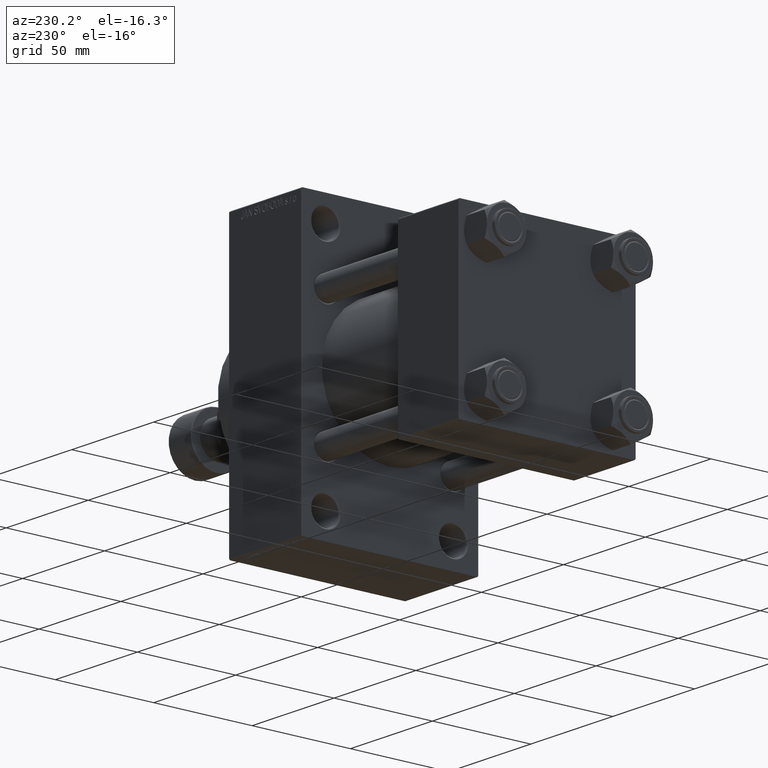
[diagram: clean part render]
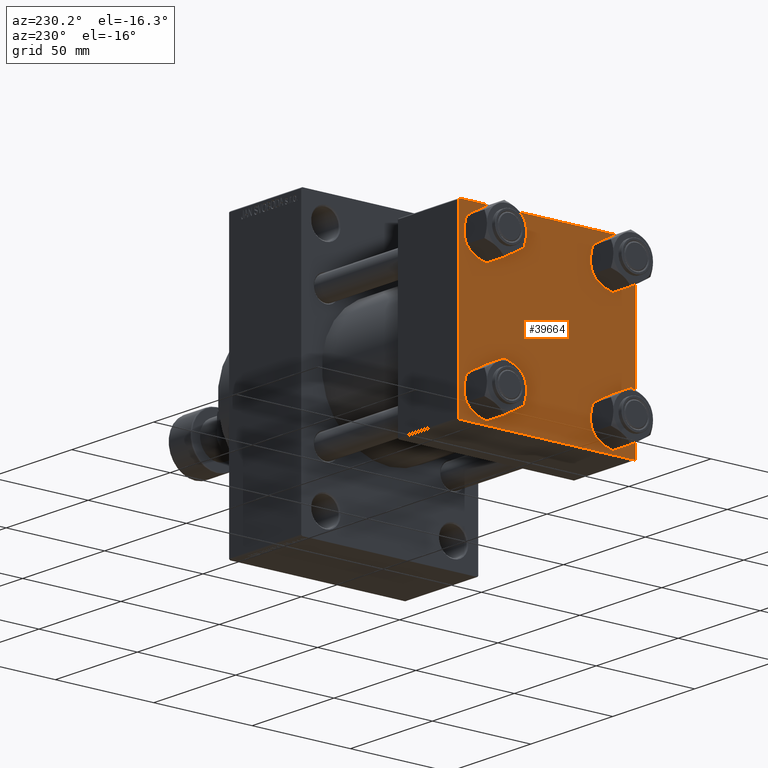
[diagram: same view with one face highlighted and labeled with its STEP entity id]
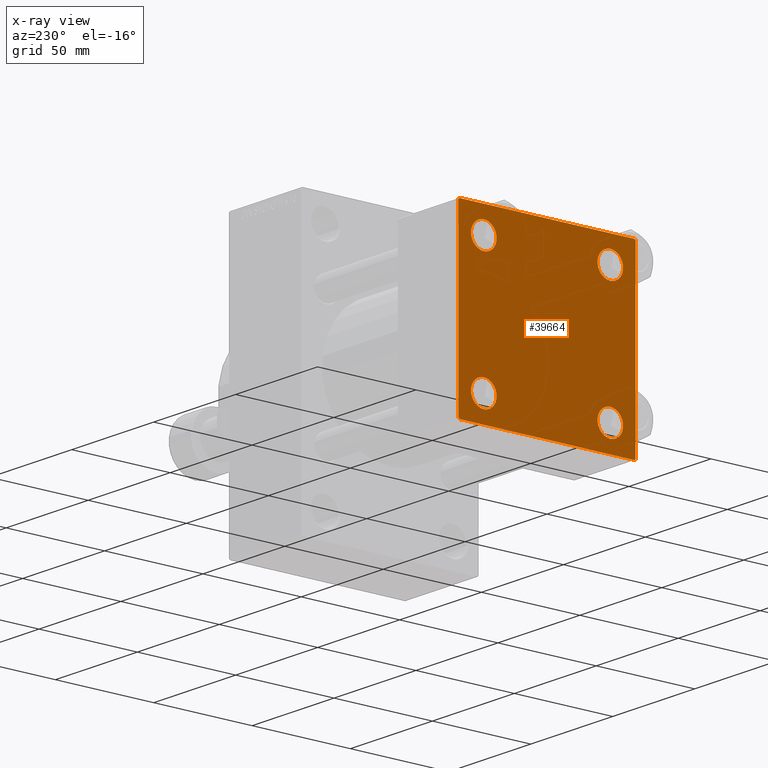
[diagram: x-ray of the same camera — body ghosted, the highlighted face saturated]
A machine part, auxiliary view. The second image highlights one B-rep face of the part: STEP entity #39664.
The next image is the same camera in x-ray: the body ghosted, the highlighted face saturated — about 0% of this face is hidden behind the body in this view.
In plain terms, the highlighted planar face has unit normal (-1, 0, 0).
Its self-contained STEP definition (entity closure, byte-faithful):
#556 = CARTESIAN_POINT ( 'NONE',  ( 0.000000000000000000, 32.14999999999999147, -25.64999999999997726 ) ) ;
#2301 = CARTESIAN_POINT ( 'NONE',  ( 0.000000000000000000, 45.00000000000000000, -44.49999999999996447 ) ) ;
#2861 = DIRECTION ( 'NONE',  ( 1.000000000000000000, -0.000000000000000000, 0.000000000000000000 ) ) ;
#3167 = LINE ( 'NONE', #6546, #45168 ) ;
#3285 = ORIENTED_EDGE ( 'NONE', *, *, #8979, .T. ) ;
#4117 = DIRECTION ( 'NONE',  ( 0.000000000000000000, 0.000000000000000000, 1.000000000000000000 ) ) ;
#4417 = CARTESIAN_POINT ( 'NONE',  ( 0.000000000000000000, 32.14999999999999147, -38.65000000000001990 ) ) ;
#5103 = ORIENTED_EDGE ( 'NONE', *, *, #8265, .F. ) ;
#5604 = VERTEX_POINT ( 'NONE', #42263 ) ;
#6546 = CARTESIAN_POINT ( 'NONE',  ( 0.000000000000000000, 45.00000000000000000, 45.00000000000000711 ) ) ;
#6650 = CIRCLE ( 'NONE', #10510, 6.500000000000019540 ) ;
#6814 = VECTOR ( 'NONE', #34221, 1000.000000000000114 ) ;
#7291 = FACE_BOUND ( 'NONE', #9203, .T. ) ;
#7845 = EDGE_LOOP ( 'NONE', ( #25215, #27050 ) ) ;
#8121 = CARTESIAN_POINT ( 'NONE',  ( 0.000000000000000000, -32.14999999999997726, 32.15000000000000568 ) ) ;
#8265 = EDGE_CURVE ( 'NONE', #26564, #16706, #3167, .T. ) ;
#8297 = CIRCLE ( 'NONE', #11380, 6.500000000000019540 ) ;
#8595 = AXIS2_PLACEMENT_3D ( 'NONE', #8121, #22583, #23289 ) ;
#8910 = CARTESIAN_POINT ( 'NONE',  ( 0.000000000000000000, -32.14999999999997726, 32.15000000000000568 ) ) ;
#8979 = EDGE_CURVE ( 'NONE', #37040, #25617, #6650, .T. ) ;
#9021 = CARTESIAN_POINT ( 'NONE',  ( 0.000000000000000000, 32.14999999999999147, 38.65000000000001990 ) ) ;
#9203 = EDGE_LOOP ( 'NONE', ( #39066, #38089 ) ) ;
#9219 = CARTESIAN_POINT ( 'NONE',  ( 0.000000000000000000, -45.00000000000000000, -44.49999999999997158 ) ) ;
#9556 = EDGE_CURVE ( 'NONE', #12150, #35496, #12733, .T. ) ;
#10000 = CIRCLE ( 'NONE', #33888, 6.500000000000019540 ) ;
#10510 = AXIS2_PLACEMENT_3D ( 'NONE', #33841, #33609, #25454 ) ;
#10997 = ORIENTED_EDGE ( 'NONE', *, *, #14276, .T. ) ;
#11012 = AXIS2_PLACEMENT_3D ( 'NONE', #35344, #36954, #40806 ) ;
#11380 = AXIS2_PLACEMENT_3D ( 'NONE', #33308, #41002, #4117 ) ;
#11820 = LINE ( 'NONE', #45319, #29841 ) ;
#12019 = DIRECTION ( 'NONE',  ( 0.000000000000000000, 0.000000000000000000, -1.000000000000000000 ) ) ;
#12150 = VERTEX_POINT ( 'NONE', #12479 ) ;
#12479 = CARTESIAN_POINT ( 'NONE',  ( 0.000000000000000000, 45.00000000000000000, 44.49999999999999289 ) ) ;
#12702 = CARTESIAN_POINT ( 'NONE',  ( 0.000000000000000000, -32.14999999999997726, -25.65000000000002700 ) ) ;
#12733 = LINE ( 'NONE', #42129, #35193 ) ;
#13213 = EDGE_CURVE ( 'NONE', #40338, #14109, #32217, .T. ) ;
#13343 = CIRCLE ( 'NONE', #36452, 6.500000000000019540 ) ;
#13409 = EDGE_CURVE ( 'NONE', #15978, #18377, #35528, .T. ) ;
#13771 = VECTOR ( 'NONE', #17194, 1000.000000000000000 ) ;
#13858 = DIRECTION ( 'NONE',  ( 0.000000000000000000, 0.000000000000000000, 1.000000000000000000 ) ) ;
#14109 = VERTEX_POINT ( 'NONE', #27984 ) ;
#14276 = EDGE_CURVE ( 'NONE', #35496, #37769, #22406, .T. ) ;
#14359 = CARTESIAN_POINT ( 'NONE',  ( 0.000000000000000000, 44.49999999999997158, 45.00000000000000711 ) ) ;
#14518 = FACE_BOUND ( 'NONE', #39522, .T. ) ;
#14672 = DIRECTION ( 'NONE',  ( -0.000000000000000000, 0.7071067811865474617, 0.7071067811865474617 ) ) ;
#15978 = VERTEX_POINT ( 'NONE', #25784 ) ;
#16706 = VERTEX_POINT ( 'NONE', #46725 ) ;
#17194 = DIRECTION ( 'NONE',  ( 0.000000000000000000, 0.000000000000000000, -1.000000000000000000 ) ) ;
#17401 = EDGE_CURVE ( 'NONE', #5604, #18770, #38384, .T. ) ;
#17477 = DIRECTION ( 'NONE',  ( 1.000000000000000000, -0.000000000000000000, 0.000000000000000000 ) ) ;
#17724 = CARTESIAN_POINT ( 'NONE',  ( 0.000000000000000000, 32.14999999999999147, -32.14999999999999858 ) ) ;
#17758 = VECTOR ( 'NONE', #14672, 1000.000000000000114 ) ;
#18377 = VERTEX_POINT ( 'NONE', #9219 ) ;
#18621 = FACE_BOUND ( 'NONE', #22009, .T. ) ;
#18770 = VERTEX_POINT ( 'NONE', #34610 ) ;
#19046 = VERTEX_POINT ( 'NONE', #4417 ) ;
#20915 = CIRCLE ( 'NONE', #8595, 6.499999999999977796 ) ;
#22009 = EDGE_LOOP ( 'NONE', ( #37976, #45937 ) ) ;
#22406 = LINE ( 'NONE', #22877, #6814 ) ;
#22583 = DIRECTION ( 'NONE',  ( 1.000000000000000000, -0.000000000000000000, 0.000000000000000000 ) ) ;
#22616 = EDGE_CURVE ( 'NONE', #26564, #12150, #11820, .T. ) ;
#22877 = CARTESIAN_POINT ( 'NONE',  ( 0.000000000000000000, 44.74999999999999289, -44.74999999999999289 ) ) ;
#23105 = DIRECTION ( 'NONE',  ( 0.000000000000000000, -1.000000000000000000, -7.709882115452476934E-17 ) ) ;
#23198 = EDGE_CURVE ( 'NONE', #25617, #37040, #8297, .T. ) ;
#23284 = ORIENTED_EDGE ( 'NONE', *, *, #23198, .T. ) ;
#23289 = DIRECTION ( 'NONE',  ( 0.000000000000000000, 0.000000000000000000, 1.000000000000000000 ) ) ;
#23335 = CARTESIAN_POINT ( 'NONE',  ( 0.000000000000000000, 45.00000000000000000, -44.99999999999999289 ) ) ;
#24366 = DIRECTION ( 'NONE',  ( 0.000000000000000000, 0.000000000000000000, 1.000000000000000000 ) ) ;
#24394 = DIRECTION ( 'NONE',  ( 0.000000000000000000, 0.000000000000000000, 1.000000000000000000 ) ) ;
#24920 = ORIENTED_EDGE ( 'NONE', *, *, #22616, .T. ) ;
#25215 = ORIENTED_EDGE ( 'NONE', *, *, #17401, .T. ) ;
#25447 = ORIENTED_EDGE ( 'NONE', *, *, #13409, .F. ) ;
#25454 = DIRECTION ( 'NONE',  ( 0.000000000000000000, 0.000000000000000000, 1.000000000000000000 ) ) ;
#25617 = VERTEX_POINT ( 'NONE', #9021 ) ;
#25784 = CARTESIAN_POINT ( 'NONE',  ( 0.000000000000000000, -45.00000000000000000, 44.49999999999998579 ) ) ;
#26564 = VERTEX_POINT ( 'NONE', #14359 ) ;
#27050 = ORIENTED_EDGE ( 'NONE', *, *, #36128, .T. ) ;
#27786 = CARTESIAN_POINT ( 'NONE',  ( 0.000000000000000000, -44.49999999999994316, -45.00000000000000000 ) ) ;
#27984 = CARTESIAN_POINT ( 'NONE',  ( 0.000000000000000000, -32.14999999999997726, -38.64999999999998437 ) ) ;
#28493 = EDGE_CURVE ( 'NONE', #40794, #19046, #10000, .T. ) ;
#28897 = LINE ( 'NONE', #47707, #17758 ) ;
#29841 = VECTOR ( 'NONE', #41702, 999.9999999999998863 ) ;
#29857 = EDGE_CURVE ( 'NONE', #14109, #40338, #39955, .T. ) ;
#30191 = ORIENTED_EDGE ( 'NONE', *, *, #33966, .T. ) ;
#30758 = CARTESIAN_POINT ( 'NONE',  ( 0.000000000000000000, -44.74999999999873523, -44.75000000000122924 ) ) ;
#31010 = CARTESIAN_POINT ( 'NONE',  ( 0.000000000000000000, 32.14999999999999147, 25.64999999999997726 ) ) ;
#32217 = CIRCLE ( 'NONE', #34539, 6.499999999999977796 ) ;
#32946 = DIRECTION ( 'NONE',  ( 0.000000000000000000, 0.000000000000000000, 1.000000000000000000 ) ) ;
#33104 = FACE_BOUND ( 'NONE', #7845, .T. ) ;
#33308 = CARTESIAN_POINT ( 'NONE',  ( 0.000000000000000000, 32.14999999999999147, 32.14999999999999858 ) ) ;
#33609 = DIRECTION ( 'NONE',  ( 1.000000000000000000, -0.000000000000000000, 0.000000000000000000 ) ) ;
#33841 = CARTESIAN_POINT ( 'NONE',  ( 0.000000000000000000, 32.14999999999999147, 32.14999999999999858 ) ) ;
#33888 = AXIS2_PLACEMENT_3D ( 'NONE', #17724, #17477, #13858 ) ;
#33966 = EDGE_CURVE ( 'NONE', #15978, #16706, #28897, .T. ) ;
#34221 = DIRECTION ( 'NONE',  ( -0.000000000000000000, -0.7071067811865474617, -0.7071067811865474617 ) ) ;
#34249 = CARTESIAN_POINT ( 'NONE',  ( 0.000000000000000000, 44.50000000000000000, -44.99999999999999289 ) ) ;
#34396 = LINE ( 'NONE', #30758, #46418 ) ;
#34539 = AXIS2_PLACEMENT_3D ( 'NONE', #36565, #40893, #32946 ) ;
#34610 = CARTESIAN_POINT ( 'NONE',  ( 0.000000000000000000, -32.14999999999997726, 25.65000000000002700 ) ) ;
#34910 = ORIENTED_EDGE ( 'NONE', *, *, #39578, .T. ) ;
#35193 = VECTOR ( 'NONE', #12019, 1000.000000000000000 ) ;
#35344 = CARTESIAN_POINT ( 'NONE',  ( 0.000000000000000000, 0.000000000000000000, 0.000000000000000000 ) ) ;
#35496 = VERTEX_POINT ( 'NONE', #2301 ) ;
#35528 = LINE ( 'NONE', #47083, #13771 ) ;
#36128 = EDGE_CURVE ( 'NONE', #18770, #5604, #20915, .T. ) ;
#36452 = AXIS2_PLACEMENT_3D ( 'NONE', #39826, #43448, #24394 ) ;
#36565 = CARTESIAN_POINT ( 'NONE',  ( 0.000000000000000000, -32.14999999999997726, -32.15000000000000568 ) ) ;
#36845 = DIRECTION ( 'NONE',  ( 0.000000000000000000, 0.000000000000000000, 1.000000000000000000 ) ) ;
#36954 = DIRECTION ( 'NONE',  ( -1.000000000000000000, 0.000000000000000000, -0.000000000000000000 ) ) ;
#37040 = VERTEX_POINT ( 'NONE', #31010 ) ;
#37423 = ORIENTED_EDGE ( 'NONE', *, *, #44129, .T. ) ;
#37590 = LINE ( 'NONE', #23335, #47242 ) ;
#37769 = VERTEX_POINT ( 'NONE', #34249 ) ;
#37976 = ORIENTED_EDGE ( 'NONE', *, *, #13213, .T. ) ;
#38089 = ORIENTED_EDGE ( 'NONE', *, *, #43411, .T. ) ;
#38384 = CIRCLE ( 'NONE', #46086, 6.499999999999977796 ) ;
#39066 = ORIENTED_EDGE ( 'NONE', *, *, #28493, .T. ) ;
#39522 = EDGE_LOOP ( 'NONE', ( #23284, #3285 ) ) ;
#39578 = EDGE_CURVE ( 'NONE', #45427, #18377, #34396, .T. ) ;
#39664 = ADVANCED_FACE ( 'NONE', ( #33104, #18621, #7291, #14518, #47556 ), #40319, .T. ) ;
#39826 = CARTESIAN_POINT ( 'NONE',  ( 0.000000000000000000, 32.14999999999999147, -32.14999999999999858 ) ) ;
#39955 = CIRCLE ( 'NONE', #44694, 6.499999999999977796 ) ;
#40319 = PLANE ( 'NONE',  #11012 ) ;
#40338 = VERTEX_POINT ( 'NONE', #12702 ) ;
#40794 = VERTEX_POINT ( 'NONE', #556 ) ;
#40806 = DIRECTION ( 'NONE',  ( -0.000000000000000000, 0.000000000000000000, 1.000000000000000000 ) ) ;
#40893 = DIRECTION ( 'NONE',  ( 1.000000000000000000, -0.000000000000000000, 0.000000000000000000 ) ) ;
#41002 = DIRECTION ( 'NONE',  ( 1.000000000000000000, -0.000000000000000000, 0.000000000000000000 ) ) ;
#41466 = ORIENTED_EDGE ( 'NONE', *, *, #9556, .T. ) ;
#41702 = DIRECTION ( 'NONE',  ( 0.000000000000000000, 0.7071067811865574537, -0.7071067811865376918 ) ) ;
#41911 = EDGE_LOOP ( 'NONE', ( #41466, #10997, #37423, #34910, #25447, #30191, #5103, #24920 ) ) ;
#42129 = CARTESIAN_POINT ( 'NONE',  ( 0.000000000000000000, 45.00000000000000000, 45.00000000000000711 ) ) ;
#42263 = CARTESIAN_POINT ( 'NONE',  ( 0.000000000000000000, -32.14999999999997726, 38.64999999999999147 ) ) ;
#42464 = CARTESIAN_POINT ( 'NONE',  ( 0.000000000000000000, -32.14999999999997726, -32.15000000000000568 ) ) ;
#43411 = EDGE_CURVE ( 'NONE', #19046, #40794, #13343, .T. ) ;
#43448 = DIRECTION ( 'NONE',  ( 1.000000000000000000, -0.000000000000000000, 0.000000000000000000 ) ) ;
#44129 = EDGE_CURVE ( 'NONE', #37769, #45427, #37590, .T. ) ;
#44694 = AXIS2_PLACEMENT_3D ( 'NONE', #42464, #46313, #24366 ) ;
#45168 = VECTOR ( 'NONE', #46094, 1000.000000000000000 ) ;
#45319 = CARTESIAN_POINT ( 'NONE',  ( 0.000000000000000000, 44.74999999999936762, 44.75000000000061107 ) ) ;
#45427 = VERTEX_POINT ( 'NONE', #27786 ) ;
#45474 = DIRECTION ( 'NONE',  ( 0.000000000000000000, -0.7071067811865672237, 0.7071067811865279218 ) ) ;
#45937 = ORIENTED_EDGE ( 'NONE', *, *, #29857, .T. ) ;
#46086 = AXIS2_PLACEMENT_3D ( 'NONE', #8910, #2861, #36845 ) ;
#46094 = DIRECTION ( 'NONE',  ( 0.000000000000000000, -1.000000000000000000, -2.312964634635742957E-16 ) ) ;
#46313 = DIRECTION ( 'NONE',  ( 1.000000000000000000, -0.000000000000000000, 0.000000000000000000 ) ) ;
#46418 = VECTOR ( 'NONE', #45474, 1000.000000000000000 ) ;
#46725 = CARTESIAN_POINT ( 'NONE',  ( 0.000000000000000000, -44.49999999999997158, 44.99999999999998579 ) ) ;
#47083 = CARTESIAN_POINT ( 'NONE',  ( 0.000000000000000000, -45.00000000000000000, 44.99999999999998579 ) ) ;
#47242 = VECTOR ( 'NONE', #23105, 1000.000000000000000 ) ;
#47556 = FACE_OUTER_BOUND ( 'NONE', #41911, .T. ) ;
#47707 = CARTESIAN_POINT ( 'NONE',  ( -0.000000000000000000, -44.74999999999999289, 44.74999999999999289 ) ) ;